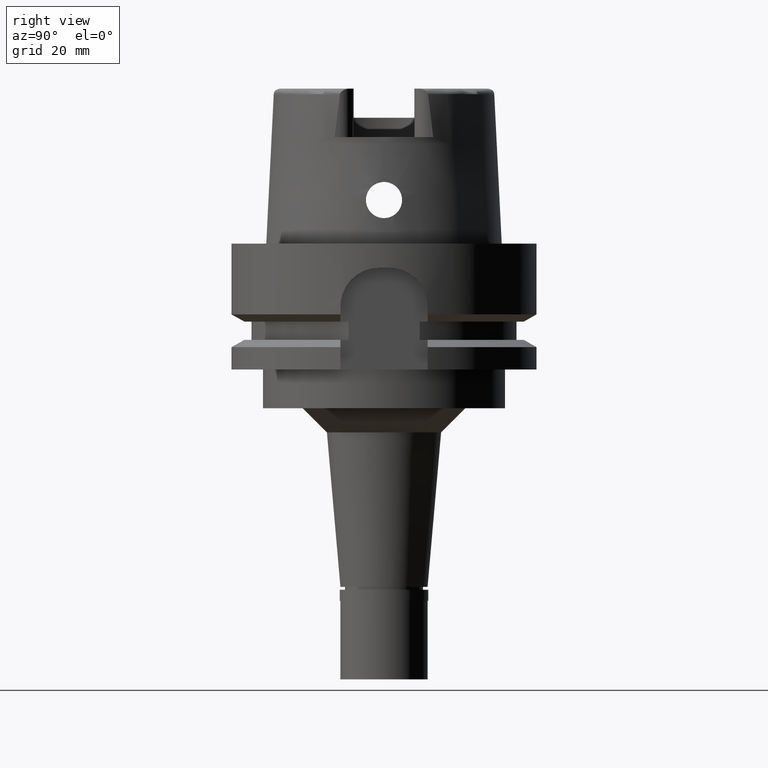
[diagram: clean part render]
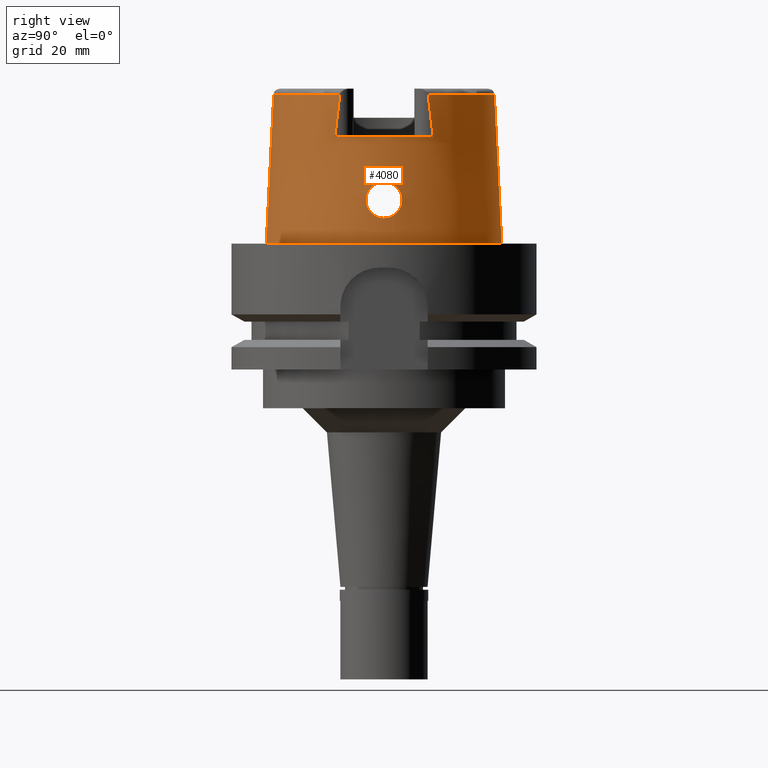
[diagram: same view with one face highlighted and labeled with its STEP entity id]
A machine part, right view. The second image highlights one B-rep face of the part: STEP entity #4080.
In plain terms, the highlighted conical surface has half-angle 2.862 deg.
Its self-contained STEP definition (entity closure, byte-faithful):
#7 = CARTESIAN_POINT ( 'NONE',  ( 23.86610099626982873, 2.553824360164203000, 6.253632452047962254 ) ) ;
#33 = AXIS2_PLACEMENT_3D ( 'NONE', #4133, #1643, #1616 ) ;
#34 = CARTESIAN_POINT ( 'NONE',  ( 23.64683082058812502, 1.470759278294880623, 12.44970541011307397 ) ) ;
#66 = CARTESIAN_POINT ( 'NONE',  ( 23.58184749024091786, 2.683601919073383080, 11.61932468916015004 ) ) ;
#118 = CARTESIAN_POINT ( 'NONE',  ( 23.64568770357830374, 1.498649928186158720, 12.43766572552738303 ) ) ;
#124 = CARTESIAN_POINT ( 'NONE',  ( 23.54199799508647928, -3.390230937593440075, 10.60443126726238638 ) ) ;
#152 = CARTESIAN_POINT ( 'NONE',  ( 23.57457979598467190, 3.748388614773936478, 8.886448749805087033 ) ) ;
#156 = CARTESIAN_POINT ( 'NONE',  ( 23.53728668007849123, -3.562516334699786569, 10.19749297402997001 ) ) ;
#185 = CARTESIAN_POINT ( 'NONE',  ( 23.58629167920701519, -2.613495886215392972, 11.68930775980577685 ) ) ;
#205 = VERTEX_POINT ( 'NONE', #3327 ) ;
#211 = CARTESIAN_POINT ( 'NONE',  ( 23.61878357754089208, -2.057968896711091844, 12.13485946368576229 ) ) ;
#238 = DIRECTION ( 'NONE',  ( 0.0000000000000000000, 0.0000000000000000000, -1.000000000000000000 ) ) ;
#240 = CARTESIAN_POINT ( 'NONE',  ( 23.61797377807429399, -2.072884344337853513, 12.12501685305687538 ) ) ;
#272 = CARTESIAN_POINT ( 'NONE',  ( 23.76221572786462133, -3.133968996046626376, 6.940675967376815692 ) ) ;
#283 = B_SPLINE_CURVE_WITH_KNOTS ( 'NONE', 3,
 ( #3354, #2905, #360, #3787, #2150, #4262, #5159, #3408, #4631, #5129, #1312, #3873, #1281, #1227, #2988, #5511, #3846, #4290, #2933, #1706, #4706, #5075, #3384, #786, #2511, #5535, #7, #4235, #384, #2098, #3814, #413, #1681, #5103, #2125, #864, #2564, #4006, #3929, #3897, #1812, #580, #1862, #3551, #3581, #3464, #5278, #3048, #4759, #5215, #152, #4402, #4426, #1369, #1758, #975, #5244, #4787, #5307, #529, #1788, #1455, #5189, #4317, #1344, #3162, #4845, #920, #2614, #949, #4349, #498, #4870, #66, #2590, #467, #3522, #2210, #1398, #1426, #3132, #2241, #2698, #3076, #3496, #2180, #1003, #118, #34, #2642, #4373, #2291 ),
 .UNSPECIFIED., .F., .F.,
 ( 4, 2, 2, 1, 1, 2, 2, 2, 2, 1, 1, 2, 2, 2, 2, 1, 1, 2, 2, 2, 2, 2, 2, 1, 2, 2, 2, 2, 1, 2, 2, 2, 2, 1, 1, 1, 2, 2, 2, 2, 2, 1, 1, 2, 2, 2, 2, 2, 2, 1, 2, 2, 4 ),
 ( 0.0000000000000000000, 0.06250000000000589806, 0.09375000000000885403, 0.1093750000000103112, 0.1171875000000110467, 0.1210937500000114075, 0.1250000000000117684, 0.1562500000000144884, 0.1718750000000158484, 0.1796875000000165146, 0.1835937500000168476, 0.1855468750000170142, 0.1875000000000171529, 0.2187500000000173750, 0.2343750000000174305, 0.2421875000000173195, 0.2460937500000172917, 0.2480468750000172085, 0.2500000000000171529, 0.2812500000000150435, 0.2968750000000140998, 0.3125000000000131006, 0.3437500000000109912, 0.3593750000000099920, 0.3671875000000093259, 0.3750000000000086597, 0.4375000000000035527, 0.4687500000000012212, 0.4843750000000000000, 0.4921874999999994449, 0.4999999999999988343, 0.5624999999999920064, 0.5937499999999885647, 0.6093749999999867883, 0.6171874999999861222, 0.6210937499999857891, 0.6230468749999856781, 0.6249999999999854561, 0.6874999999999836797, 0.7187499999999829026, 0.7343749999999822364, 0.7421874999999820144, 0.7460937499999817923, 0.7480468749999817923, 0.7499999999999816813, 0.7812499999999843459, 0.7968749999999854561, 0.8124999999999866773, 0.8437499999999888978, 0.8593749999999901190, 0.8671874999999907851, 0.8749999999999914513, 1.000000000000000000 ),
 .UNSPECIFIED. ) ;
#323 = CARTESIAN_POINT ( 'NONE',  ( 24.05252611746999847, -0.4685975498139509088, 5.249999999999998224 ) ) ;
#331 = CARTESIAN_POINT ( 'NONE',  ( 20.87001804948999961, 10.16747560217999968, 22.00000000000000000 ) ) ;
#342 = CARTESIAN_POINT ( 'NONE',  ( 0.0000000000000000000, 0.0000000000000000000, 30.85992712280000205 ) ) ;
#347 = VECTOR ( 'NONE', #1925, 1000.000000000000000 ) ;
#353 = B_SPLINE_CURVE_WITH_KNOTS ( 'NONE', 3,
 ( #480, #5202, #3446, #2498 ),
 .UNSPECIFIED., .F., .F.,
 ( 4, 4 ),
 ( 0.0000000000000000000, 1.000000000000000000 ),
 .UNSPECIFIED. ) ;
#358 = CARTESIAN_POINT ( 'NONE',  ( 23.79260149899490528, -2.982726372942812176, 6.723807401706809017 ) ) ;
#360 = CARTESIAN_POINT ( 'NONE',  ( 24.04784077505849282, 0.4713762579791234142, 5.271793800546512365 ) ) ;
#384 = CARTESIAN_POINT ( 'NONE',  ( 23.85631638838381718, 2.616290716789146042, 6.313440934651084468 ) ) ;
#386 = CARTESIAN_POINT ( 'NONE',  ( 20.87000000000000099, -10.16755860605000095, 22.00000000000000000 ) ) ;
#387 = ORIENTED_EDGE ( 'NONE', *, *, #1879, .T. ) ;
#401 = ORIENTED_EDGE ( 'NONE', *, *, #5322, .F. ) ;
#413 = CARTESIAN_POINT ( 'NONE',  ( 23.83827406826996409, 2.728798001737815504, 6.424861325945546042 ) ) ;
#467 = CARTESIAN_POINT ( 'NONE',  ( 23.58308392293322697, 2.663681672525055610, 11.63957551832344706 ) ) ;
#480 = CARTESIAN_POINT ( 'NONE',  ( 20.87000000000000099, -10.16755860605000095, 22.00000000000000000 ) ) ;
#498 = CARTESIAN_POINT ( 'NONE',  ( 23.57801659676511719, 2.745462519824017456, 11.55482802212354621 ) ) ;
#520 = B_SPLINE_CURVE_WITH_KNOTS ( 'NONE', 3,
 ( #4063, #559, #3218, #3555, #614, #5392, #2371, #1511, #4093, #4009, #3981, #1889, #1059, #672, #1947, #3638, #1541, #585, #2268, #211, #240, #4429, #1865, #3245, #1917, #4873, #2675, #185, #3610, #3586, #5283, #2323, #1006, #3135, #4489, #124, #4405, #3165, #2702, #5333, #2298, #156, #5310, #4519, #1429, #1459, #2762, #1028, #2731, #641, #5361, #4461, #4038, #1481, #3189, #4901, #4927, #2347, #1085, #2787, #2932, #2876, #3695, #731, #3785, #2904, #4603, #3757, #1680, #272, #3382, #2096, #358, #2429, #2400, #2510, #755, #1198, #5449, #5423, #812, #5480, #1602, #3328, #4175, #4119, #1565, #2484, #1976, #4629, #5531, #323, #1631 ),
 .UNSPECIFIED., .F., .F.,
 ( 4, 2, 2, 1, 1, 1, 2, 2, 2, 2, 1, 1, 2, 2, 2, 1, 1, 2, 2, 2, 2, 1, 1, 1, 2, 2, 2, 2, 1, 2, 2, 2, 2, 1, 1, 1, 2, 2, 2, 2, 1, 1, 2, 2, 2, 1, 1, 2, 2, 2, 2, 1, 1, 1, 2, 2, 4 ),
 ( 0.0000000000000000000, 0.06249999999999979183, 0.09374999999999968081, 0.1093749999999995837, 0.1171874999999995837, 0.1210937499999995837, 0.1230468749999996114, 0.1249999999999996669, 0.1562499999999992228, 0.1718749999999990008, 0.1796874999999988343, 0.1835937499999988343, 0.1855468749999988620, 0.1874999999999988898, 0.2187499999999983624, 0.2343749999999980849, 0.2421874999999978906, 0.2460937499999979183, 0.2499999999999979738, 0.3124999999999985012, 0.3437499999999987788, 0.3593749999999987232, 0.3671874999999989453, 0.3710937499999990563, 0.3730468749999991118, 0.3749999999999991118, 0.4375000000000046629, 0.4687500000000076050, 0.4843750000000090483, 0.4921875000000095479, 0.5000000000000101030, 0.5625000000000121014, 0.5937500000000131006, 0.6093750000000136557, 0.6171875000000138778, 0.6210937500000140998, 0.6230468750000140998, 0.6250000000000140998, 0.6562500000000128786, 0.6718750000000124345, 0.6796875000000121014, 0.6835937500000118794, 0.6855468750000118794, 0.6875000000000118794, 0.7187500000000113243, 0.7343750000000111022, 0.7421875000000109912, 0.7460937500000108802, 0.7500000000000106581, 0.8125000000000091038, 0.8437500000000083267, 0.8593750000000077716, 0.8671875000000075495, 0.8710937500000073275, 0.8730468750000073275, 0.8750000000000073275, 1.000000000000000000 ),
 .UNSPECIFIED. ) ;
#521 = AXIS2_PLACEMENT_3D ( 'NONE', #4051, #2749, #2779 ) ;
#529 = CARTESIAN_POINT ( 'NONE',  ( 23.53881905221228266, 3.506807874110458023, 10.32910756825747889 ) ) ;
#559 = CARTESIAN_POINT ( 'NONE',  ( 23.67751368058000239, -0.2269372618241980999, 12.75000000000000000 ) ) ;
#580 = CARTESIAN_POINT ( 'NONE',  ( 23.69855973497267243, 3.411610908037149059, 7.442951347297808162 ) ) ;
#585 = CARTESIAN_POINT ( 'NONE',  ( 23.62274807869258808, -1.983924338625913553, 12.18255698487396899 ) ) ;
#614 = CARTESIAN_POINT ( 'NONE',  ( 23.66467853638999230, -0.9475599064896280677, 12.63055377470736396 ) ) ;
#641 = CARTESIAN_POINT ( 'NONE',  ( 23.56689586154886129, -3.749960335022333169, 9.032835779095483630 ) ) ;
#651 = ORIENTED_EDGE ( 'NONE', *, *, #4897, .T. ) ;
#672 = CARTESIAN_POINT ( 'NONE',  ( 23.63992939736543875, -1.634130398431773656, 12.37746981058979401 ) ) ;
#701 = DIRECTION ( 'NONE',  ( 0.0000000000000000000, -1.000000000000000000, 0.0000000000000000000 ) ) ;
#719 = CARTESIAN_POINT ( 'NONE',  ( 0.0000000000000000000, -24.31503482328999866, 1.882938249763999678E-13 ) ) ;
#731 = CARTESIAN_POINT ( 'NONE',  ( 23.72639631422968876, -3.297434215274633207, 7.213047209902025081 ) ) ;
#755 = CARTESIAN_POINT ( 'NONE',  ( 23.84261698847215527, -2.700161048912928852, 6.397718701564205190 ) ) ;
#786 = CARTESIAN_POINT ( 'NONE',  ( 23.88975279518123784, 2.393748766182786536, 6.112744478409104509 ) ) ;
#797 = DIRECTION ( 'NONE',  ( 0.0000000000000000000, 0.04993926899645239476, -0.9987522562738468945 ) ) ;
#812 = CARTESIAN_POINT ( 'NONE',  ( 23.91110496359535276, -2.249770900569942889, 5.989653467829410438 ) ) ;
#864 = CARTESIAN_POINT ( 'NONE',  ( 23.78128112547707929, 3.041491191556952245, 6.805546591317910732 ) ) ;
#918 = B_SPLINE_CURVE_WITH_KNOTS ( 'NONE', 3,
 ( #1121, #3173, #4071, #4882 ),
 .UNSPECIFIED., .F., .F.,
 ( 4, 4 ),
 ( 0.0000000000000000000, 1.000000000000000000 ),
 .UNSPECIFIED. ) ;
#920 = CARTESIAN_POINT ( 'NONE',  ( 23.56141579289706556, 3.018731351093832505, 11.22880893402901137 ) ) ;
#949 = CARTESIAN_POINT ( 'NONE',  ( 23.57157479744221007, 2.850297542751476065, 11.43785658437544228 ) ) ;
#975 = CARTESIAN_POINT ( 'NONE',  ( 23.54089139355978944, 3.657045081287274790, 9.838751633881726022 ) ) ;
#1003 = CARTESIAN_POINT ( 'NONE',  ( 23.64327399068472602, 1.556331327749909121, 12.41193933796928661 ) ) ;
#1006 = CARTESIAN_POINT ( 'NONE',  ( 23.54998740598513152, -3.213831788688603641, 10.93618282341419246 ) ) ;
#1025 = AXIS2_PLACEMENT_3D ( 'NONE', #4601, #4957, #701 ) ;
#1028 = CARTESIAN_POINT ( 'NONE',  ( 23.56262593013055806, -3.748090223500963880, 9.123282189095380801 ) ) ;
#1059 = CARTESIAN_POINT ( 'NONE',  ( 23.64440169021373706, -1.531582783825551353, 12.42449899801493629 ) ) ;
#1085 = CARTESIAN_POINT ( 'NONE',  ( 23.68014866479311920, -3.481537480737067813, 7.606635363379910864 ) ) ;
#1086 = CARTESIAN_POINT ( 'NONE',  ( 20.86979783656000009, 9.115619587077999242, 30.82499215829999883 ) ) ;
#1089 = CARTESIAN_POINT ( 'NONE',  ( 0.0000000000000000000, -22.77198729362000051, 30.85992712280000205 ) ) ;
#1121 = CARTESIAN_POINT ( 'NONE',  ( 20.86974110885000044, -9.111383541376000039, 30.85992743120000270 ) ) ;
#1149 = ORIENTED_EDGE ( 'NONE', *, *, #1484, .F. ) ;
#1170 = FACE_BOUND ( 'NONE', #4125, .T. ) ;
#1198 = CARTESIAN_POINT ( 'NONE',  ( 23.84620483199405072, -2.678674846677985499, 6.375606982170940462 ) ) ;
#1227 = CARTESIAN_POINT ( 'NONE',  ( 23.96220732683738319, 1.798631774662497573, 5.708927875598301505 ) ) ;
#1281 = CARTESIAN_POINT ( 'NONE',  ( 23.97829014961505223, 1.636401541084440581, 5.623667973718459834 ) ) ;
#1297 = AXIS2_PLACEMENT_3D ( 'NONE', #5447, #238, #3298 ) ;
#1303 = VERTEX_POINT ( 'NONE', #331 ) ;
#1312 = CARTESIAN_POINT ( 'NONE',  ( 23.99735625169792286, 1.410263045800381976, 5.525253725811468897 ) ) ;
#1344 = CARTESIAN_POINT ( 'NONE',  ( 23.54156454941215770, 3.389891711947801589, 10.61583759861062504 ) ) ;
#1369 = CARTESIAN_POINT ( 'NONE',  ( 23.55653434083626863, 3.750009393421158244, 9.237198457394530493 ) ) ;
#1398 = CARTESIAN_POINT ( 'NONE',  ( 23.60269519947260974, 2.338469386638408309, 11.93220650268045269 ) ) ;
#1426 = CARTESIAN_POINT ( 'NONE',  ( 23.60552172650531233, 2.290113034096922906, 11.97012732684336100 ) ) ;
#1429 = CARTESIAN_POINT ( 'NONE',  ( 23.54893518584329826, -3.720975713495776827, 9.480865441389546788 ) ) ;
#1455 = CARTESIAN_POINT ( 'NONE',  ( 23.53938816561550240, 3.477957228443425475, 10.40227513446093432 ) ) ;
#1459 = CARTESIAN_POINT ( 'NONE',  ( 23.55519475543550811, -3.738320779978827169, 9.301754377375941019 ) ) ;
#1481 = CARTESIAN_POINT ( 'NONE',  ( 23.63421606384116558, -3.633977778285507387, 8.065701237330625162 ) ) ;
#1484 = EDGE_CURVE ( 'NONE', #4780, #3138, #520, .T. ) ;
#1486 = CARTESIAN_POINT ( 'NONE',  ( 20.86974092012000170, 9.111384045666000020, 30.85992712280000205 ) ) ;
#1508 = EDGE_CURVE ( 'NONE', #205, #1303, #1527, .T. ) ;
#1511 = CARTESIAN_POINT ( 'NONE',  ( 23.65232089012372541, -1.330148263772293005, 12.50643553260709595 ) ) ;
#1527 = B_SPLINE_CURVE_WITH_KNOTS ( 'NONE', 3,
 ( #5507, #4205, #2038, #4234 ),
 .UNSPECIFIED., .F., .F.,
 ( 4, 4 ),
 ( 0.0000000000000000000, 1.000000000000000000 ),
 .UNSPECIFIED. ) ;
#1541 = CARTESIAN_POINT ( 'NONE',  ( 23.62501393609635159, -1.940265213648425746, 12.20920379478999251 ) ) ;
#1558 = CARTESIAN_POINT ( 'NONE',  ( 20.86974110885000044, -9.111383541376000039, 30.85992743120000270 ) ) ;
#1565 = CARTESIAN_POINT ( 'NONE',  ( 23.99210084936986220, -1.474963489151885909, 5.552203701673819936 ) ) ;
#1573 = ORIENTED_EDGE ( 'NONE', *, *, #1508, .T. ) ;
#1589 = ORIENTED_EDGE ( 'NONE', *, *, #2502, .F. ) ;
#1602 = CARTESIAN_POINT ( 'NONE',  ( 23.95865594975947488, -1.835227266227250853, 5.727738340394175509 ) ) ;
#1616 = DIRECTION ( 'NONE',  ( 0.0000000000000000000, -1.000000000000000000, 0.0000000000000000000 ) ) ;
#1631 = CARTESIAN_POINT ( 'NONE',  ( 24.05252611746999847, 0.0000000000000000000, 5.250000000000000000 ) ) ;
#1643 = DIRECTION ( 'NONE',  ( 0.0000000000000000000, 0.0000000000000000000, 1.000000000000000000 ) ) ;
#1664 = CIRCLE ( 'NONE', #1297, 22.77198729362000407 ) ;
#1680 = CARTESIAN_POINT ( 'NONE',  ( 23.76020492347369739, -3.143580885568628247, 6.955378676769588431 ) ) ;
#1681 = CARTESIAN_POINT ( 'NONE',  ( 23.82413139239399058, 2.811969450463534415, 6.515949772150440467 ) ) ;
#1706 = CARTESIAN_POINT ( 'NONE',  ( 23.93359247609229357, 2.056675420503002005, 5.864294026444095032 ) ) ;
#1758 = CARTESIAN_POINT ( 'NONE',  ( 23.54811392395387415, 3.727414841174309323, 9.478341636720379881 ) ) ;
#1788 = CARTESIAN_POINT ( 'NONE',  ( 23.53919524995518131, 3.486765881379009446, 10.38036127741019499 ) ) ;
#1812 = CARTESIAN_POINT ( 'NONE',  ( 23.70847854141057098, 3.372183878690301562, 7.357522731814357897 ) ) ;
#1862 = CARTESIAN_POINT ( 'NONE',  ( 23.69198153002013640, 3.437251068006669907, 7.500401857094112223 ) ) ;
#1865 = CARTESIAN_POINT ( 'NONE',  ( 23.61155157825120909, -2.190148190918178805, 12.04645978993104904 ) ) ;
#1879 = EDGE_CURVE ( 'NONE', #1303, #3915, #5364, .T. ) ;
#1889 = CARTESIAN_POINT ( 'NONE',  ( 23.64841211551645372, -1.431313844244924027, 12.46610465183052874 ) ) ;
#1917 = CARTESIAN_POINT ( 'NONE',  ( 23.59752478912244555, -2.431654359917491348, 11.85540691694829007 ) ) ;
#1925 = DIRECTION ( 'NONE',  ( 0.0000000000000000000, -0.04993926899645239476, -0.9987522562738468945 ) ) ;
#1947 = CARTESIAN_POINT ( 'NONE',  ( 23.63217429571847461, -1.797782848949725398, 12.29154567766471828 ) ) ;
#1976 = CARTESIAN_POINT ( 'NONE',  ( 23.99462923735713460, -1.444059471803009309, 5.539185487589286971 ) ) ;
#2018 = EDGE_CURVE ( 'NONE', #4181, #2488, #5465, .T. ) ;
#2038 = CARTESIAN_POINT ( 'NONE',  ( 20.87003658568521303, 9.826152025516758926, 24.98976325587998559 ) ) ;
#2052 = CARTESIAN_POINT ( 'NONE',  ( 0.0000000000000000000, 22.77198729362000051, 30.85992712280000205 ) ) ;
#2076 = EDGE_LOOP ( 'NONE', ( #3893, #1589, #2314, #3681, #651, #4854, #5456, #401, #1573, #387 ) ) ;
#2096 = CARTESIAN_POINT ( 'NONE',  ( 23.77839576309242631, -3.056008757607928228, 6.823185852251183015 ) ) ;
#2098 = CARTESIAN_POINT ( 'NONE',  ( 23.85432518503210630, 2.628812784128297331, 6.325692599499984858 ) ) ;
#2125 = CARTESIAN_POINT ( 'NONE',  ( 23.79562250219492725, 2.967775848069229561, 6.706836040137573285 ) ) ;
#2150 = CARTESIAN_POINT ( 'NONE',  ( 24.02792806980962581, 0.9494002330134392320, 5.370044802437950793 ) ) ;
#2180 = CARTESIAN_POINT ( 'NONE',  ( 23.63961013986031645, 1.642012165882747565, 12.37241466383991373 ) ) ;
#2210 = CARTESIAN_POINT ( 'NONE',  ( 23.59429629025760278, 2.480656481163456384, 11.81494930840466928 ) ) ;
#2241 = CARTESIAN_POINT ( 'NONE',  ( 23.61419839561850864, 2.139864287274875654, 12.08010162468809945 ) ) ;
#2268 = CARTESIAN_POINT ( 'NONE',  ( 23.61999009969097330, -2.035645914424377700, 12.14947547426653252 ) ) ;
#2285 = AXIS2_PLACEMENT_3D ( 'NONE', #342, #2418, #5466 ) ;
#2290 = CIRCLE ( 'NONE', #2285, 22.77198729362000051 ) ;
#2291 = CARTESIAN_POINT ( 'NONE',  ( 23.67751368057999883, 0.0000000000000000000, 12.75000000000000000 ) ) ;
#2298 = CARTESIAN_POINT ( 'NONE',  ( 23.53972633428752559, -3.463832341874075293, 10.43681141511330956 ) ) ;
#2314 = ORIENTED_EDGE ( 'NONE', *, *, #4139, .T. ) ;
#2323 = CARTESIAN_POINT ( 'NONE',  ( 23.56094474692503127, -3.013923653200347275, 11.24473583732199700 ) ) ;
#2347 = CARTESIAN_POINT ( 'NONE',  ( 23.67764012416500563, -3.490709029891247539, 7.629625542802776828 ) ) ;
#2367 = CONICAL_SURFACE ( 'NONE', #1025, 23.54351105844999736, 0.04996004983832824653 ) ;
#2371 = CARTESIAN_POINT ( 'NONE',  ( 23.65619817326444974, -1.222953347645819422, 12.54602582008851641 ) ) ;
#2400 = CARTESIAN_POINT ( 'NONE',  ( 23.82470342304303657, -2.805461651931806966, 6.510313122143885245 ) ) ;
#2403 = CARTESIAN_POINT ( 'NONE',  ( 20.87000233117000292, 9.149994763924999219, 30.54552228658999979 ) ) ;
#2418 = DIRECTION ( 'NONE',  ( 0.0000000000000000000, 0.0000000000000000000, -1.000000000000000000 ) ) ;
#2429 = CARTESIAN_POINT ( 'NONE',  ( 23.81398954185866756, -2.865728235233883758, 6.580515752918278949 ) ) ;
#2463 = CIRCLE ( 'NONE', #33, 24.31503482328999866 ) ;
#2484 = CARTESIAN_POINT ( 'NONE',  ( 23.99362284327500561, -1.456410998629531717, 5.544365202963786210 ) ) ;
#2488 = VERTEX_POINT ( 'NONE', #5317 ) ;
#2498 = CARTESIAN_POINT ( 'NONE',  ( 20.86999179061000120, -9.150018439614999721, 30.54599490405999873 ) ) ;
#2502 = EDGE_CURVE ( 'NONE', #4524, #3060, #918, .T. ) ;
#2510 = CARTESIAN_POINT ( 'NONE',  ( 23.83723770565837441, -2.732185833349593196, 6.431085014200220940 ) ) ;
#2511 = CARTESIAN_POINT ( 'NONE',  ( 23.88276114182464127, 2.442550838843437155, 6.153808027313274032 ) ) ;
#2564 = CARTESIAN_POINT ( 'NONE',  ( 23.77392409831421460, 3.077901552149866049, 6.856953425320914342 ) ) ;
#2590 = CARTESIAN_POINT ( 'NONE',  ( 23.58263000816597099, 2.670991511506753735, 11.63218263666431618 ) ) ;
#2614 = CARTESIAN_POINT ( 'NONE',  ( 23.56890854904223431, 2.894110309980802764, 11.38559899653816387 ) ) ;
#2631 = CARTESIAN_POINT ( 'NONE',  ( 23.67751368057999883, 0.0000000000000000000, 12.75000000000000000 ) ) ;
#2642 = CARTESIAN_POINT ( 'NONE',  ( 23.66769516538260731, 0.9501039779684758990, 12.66626129347694274 ) ) ;
#2675 = CARTESIAN_POINT ( 'NONE',  ( 23.58839877890404324, -2.580310257006306784, 11.72142571181462500 ) ) ;
#2698 = CARTESIAN_POINT ( 'NONE',  ( 23.62265141585296746, 1.991568263108845827, 12.17967554930064900 ) ) ;
#2702 = CARTESIAN_POINT ( 'NONE',  ( 23.53991781665941119, -3.456496827750465961, 10.45436410508649416 ) ) ;
#2731 = CARTESIAN_POINT ( 'NONE',  ( 23.56538194195815095, -3.749570833537779091, 9.064010826697204593 ) ) ;
#2749 = DIRECTION ( 'NONE',  ( 0.0000000000000000000, 0.0000000000000000000, -1.000000000000000000 ) ) ;
#2762 = CARTESIAN_POINT ( 'NONE',  ( 23.55865928454669955, -3.744810778333773182, 9.212336081507420005 ) ) ;
#2779 = DIRECTION ( 'NONE',  ( 0.8989877876694422065, 0.4379736951247206744, 0.0000000000000000000 ) ) ;
#2787 = CARTESIAN_POINT ( 'NONE',  ( 23.68182876623762567, -3.475364911677824686, 7.591310193463790768 ) ) ;
#2851 = CARTESIAN_POINT ( 'NONE',  ( 20.86989360827000084, 9.124124434996000232, 30.75511465902000197 ) ) ;
#2876 = CARTESIAN_POINT ( 'NONE',  ( 23.69416603426912715, -3.429618717865709598, 7.479793454422662968 ) ) ;
#2904 = CARTESIAN_POINT ( 'NONE',  ( 23.74461760133738863, -3.216369799747139435, 7.071643484561453086 ) ) ;
#2905 = CARTESIAN_POINT ( 'NONE',  ( 24.05252611746999492, 0.2330771861183949800, 5.250000000000001776 ) ) ;
#2932 = CARTESIAN_POINT ( 'NONE',  ( 23.68285513203028003, -3.471572807043562747, 7.581999830151901598 ) ) ;
#2933 = CARTESIAN_POINT ( 'NONE',  ( 23.93520082888522893, 2.043096808902235662, 5.855429891487728078 ) ) ;
#2988 = CARTESIAN_POINT ( 'NONE',  ( 23.95656039384594749, 1.852905829038556274, 5.739137860364320609 ) ) ;
#3048 = CARTESIAN_POINT ( 'NONE',  ( 23.59642337939682832, 3.723193938022077543, 8.537145364027772132 ) ) ;
#3060 = VERTEX_POINT ( 'NONE', #4450 ) ;
#3076 = CARTESIAN_POINT ( 'NONE',  ( 23.62805592809426969, 1.887816621426480879, 12.24250377702025006 ) ) ;
#3132 = CARTESIAN_POINT ( 'NONE',  ( 23.61122856182610619, 2.191595777424108160, 12.04354760024861903 ) ) ;
#3135 = CARTESIAN_POINT ( 'NONE',  ( 23.54699556186239917, -3.273327982614070208, 10.83330770379535046 ) ) ;
#3138 = VERTEX_POINT ( 'NONE', #3155 ) ;
#3155 = CARTESIAN_POINT ( 'NONE',  ( 24.05252611746999847, 0.0000000000000000000, 5.250000000000000000 ) ) ;
#3162 = CARTESIAN_POINT ( 'NONE',  ( 23.54615767435463880, 3.290419275261979859, 10.81533316881154505 ) ) ;
#3165 = CARTESIAN_POINT ( 'NONE',  ( 23.54013042264443456, -3.448634373822565991, 10.47300382813713426 ) ) ;
#3173 = CARTESIAN_POINT ( 'NONE',  ( 20.86991377786844382, -9.124261068912071337, 30.75528325548666331 ) ) ;
#3189 = CARTESIAN_POINT ( 'NONE',  ( 23.65159051189734285, -3.580177459136362206, 7.882466318699295371 ) ) ;
#3192 = CARTESIAN_POINT ( 'NONE',  ( 20.87000233117000292, 9.145647684069000860, 30.58043093308000238 ) ) ;
#3218 = CARTESIAN_POINT ( 'NONE',  ( 23.67506889121047209, -0.4634815564845479186, 12.72935847292963629 ) ) ;
#3224 = CARTESIAN_POINT ( 'NONE',  ( 0.0000000000000000000, -22.77198729362000051, 30.85992712280000205 ) ) ;
#3245 = CARTESIAN_POINT ( 'NONE',  ( 23.60594329722899687, -2.289066581451940419, 11.97285057403286679 ) ) ;
#3250 = LINE ( 'NONE', #1089, #347 ) ;
#3298 = DIRECTION ( 'NONE',  ( 0.9164655183265837390, -0.4001136759951928745, 0.0000000000000000000 ) ) ;
#3327 = CARTESIAN_POINT ( 'NONE',  ( 20.87000233117000292, 9.149994763924999219, 30.54552228658999979 ) ) ;
#3328 = CARTESIAN_POINT ( 'NONE',  ( 23.97370934641362084, -1.682079325060492403, 5.647922582022963489 ) ) ;
#3354 = CARTESIAN_POINT ( 'NONE',  ( 24.05252611746999847, 0.0000000000000000000, 5.250000000000000000 ) ) ;
#3360 = B_SPLINE_CURVE_WITH_KNOTS ( 'NONE', 3,
 ( #2403, #3192, #4095, #2851, #1086, #1486 ),
 .UNSPECIFIED., .F., .F.,
 ( 4, 1, 1, 4 ),
 ( 0.0000000000000000000, 0.3333333333333000081, 0.6666666666667000474, 1.000000000000000000 ),
 .UNSPECIFIED. ) ;
#3382 = CARTESIAN_POINT ( 'NONE',  ( 23.76335843799484948, -3.128481740037758474, 6.932353653591976084 ) ) ;
#3384 = CARTESIAN_POINT ( 'NONE',  ( 23.90966612610531072, 2.249892644458846735, 5.997402208312804461 ) ) ;
#3408 = CARTESIAN_POINT ( 'NONE',  ( 24.00424512808899991, 1.320547455719684793, 5.489957723265351142 ) ) ;
#3446 = CARTESIAN_POINT ( 'NONE',  ( 20.86997558656052476, -9.487356811412270829, 27.83696496950079791 ) ) ;
#3464 = CARTESIAN_POINT ( 'NONE',  ( 23.63437902705015148, 3.637157487368931630, 8.054285572799065207 ) ) ;
#3496 = CARTESIAN_POINT ( 'NONE',  ( 23.63581644458371755, 1.725122880142947679, 12.33020219107466176 ) ) ;
#3522 = CARTESIAN_POINT ( 'NONE',  ( 23.58880457995841340, 2.571602777112532490, 11.73211554353163777 ) ) ;
#3551 = CARTESIAN_POINT ( 'NONE',  ( 23.68889937195573125, 3.449039576172379107, 7.527672645744617697 ) ) ;
#3555 = CARTESIAN_POINT ( 'NONE',  ( 23.66773452310190251, -0.8256450679316175156, 12.66004339660113054 ) ) ;
#3581 = CARTESIAN_POINT ( 'NONE',  ( 23.65789844104446971, 3.564907296019145466, 7.805959179643570778 ) ) ;
#3586 = CARTESIAN_POINT ( 'NONE',  ( 23.58426862643280941, -2.645112811163156330, 11.65822788186617665 ) ) ;
#3610 = CARTESIAN_POINT ( 'NONE',  ( 23.58488681927206088, -2.635486960762567943, 11.66776038164352514 ) ) ;
#3638 = CARTESIAN_POINT ( 'NONE',  ( 23.62941481810707955, -1.853961940192638380, 12.26033702360228261 ) ) ;
#3658 = VERTEX_POINT ( 'NONE', #3224 ) ;
#3681 = ORIENTED_EDGE ( 'NONE', *, *, #3707, .T. ) ;
#3695 = CARTESIAN_POINT ( 'NONE',  ( 23.70621568740239837, -3.382564234139204373, 7.376469921949904140 ) ) ;
#3707 = EDGE_CURVE ( 'NONE', #3658, #4883, #3250, .T. ) ;
#3757 = CARTESIAN_POINT ( 'NONE',  ( 23.75720517116173980, -3.157860767829802739, 6.977390894606571692 ) ) ;
#3785 = CARTESIAN_POINT ( 'NONE',  ( 23.73347421436003302, -3.266630154353623805, 7.157175648059038942 ) ) ;
#3787 = CARTESIAN_POINT ( 'NONE',  ( 24.03378474782400076, 0.8297864663593866874, 5.340934725807114702 ) ) ;
#3814 = CARTESIAN_POINT ( 'NONE',  ( 23.85319510156594092, 2.635881025144990897, 6.332662280612280092 ) ) ;
#3824 = VERTEX_POINT ( 'NONE', #4320 ) ;
#3846 = CARTESIAN_POINT ( 'NONE',  ( 23.94310406544311221, 1.975172730042196623, 5.812054761604393605 ) ) ;
#3873 = CARTESIAN_POINT ( 'NONE',  ( 23.98786806320463683, 1.529050181572424005, 5.573991921227072766 ) ) ;
#3893 = ORIENTED_EDGE ( 'NONE', *, *, #4937, .T. ) ;
#3897 = CARTESIAN_POINT ( 'NONE',  ( 23.71855184487575130, 3.329952780369188847, 7.274390351208498195 ) ) ;
#3915 = VERTEX_POINT ( 'NONE', #386 ) ;
#3929 = CARTESIAN_POINT ( 'NONE',  ( 23.73890444784245446, 3.242009477088726666, 7.111314936674147269 ) ) ;
#3981 = CARTESIAN_POINT ( 'NONE',  ( 23.64878501799845623, -1.421928845402213870, 12.46996923386418210 ) ) ;
#4006 = CARTESIAN_POINT ( 'NONE',  ( 23.75274751120207384, 3.178739631762727225, 7.006856578832771021 ) ) ;
#4009 = CARTESIAN_POINT ( 'NONE',  ( 23.64938666538236589, -1.406640230093717525, 12.47619495834637426 ) ) ;
#4038 = CARTESIAN_POINT ( 'NONE',  ( 23.62362394976919688, -3.662888062288447877, 8.187185849151221717 ) ) ;
#4051 = CARTESIAN_POINT ( 'NONE',  ( 0.0000000000000000000, 0.0000000000000000000, 22.00000000000000000 ) ) ;
#4063 = CARTESIAN_POINT ( 'NONE',  ( 23.67751368057999883, 0.0000000000000000000, 12.75000000000000000 ) ) ;
#4071 = CARTESIAN_POINT ( 'NONE',  ( 20.87000008239884252, -9.137139754562893401, 30.65063907977333457 ) ) ;
#4080 = ADVANCED_FACE ( 'NONE', ( #5390, #1170 ), #2367, .T. ) ;
#4093 = CARTESIAN_POINT ( 'NONE',  ( 23.65028197398938659, -1.383702099122871454, 12.48544739742535725 ) ) ;
#4095 = CARTESIAN_POINT ( 'NONE',  ( 20.86997922676000172, 9.137000529245002056, 30.65041110573000083 ) ) ;
#4119 = CARTESIAN_POINT ( 'NONE',  ( 23.98846271078420500, -1.518424972417324437, 5.570980403077474996 ) ) ;
#4125 = EDGE_LOOP ( 'NONE', ( #5399, #1149 ) ) ;
#4133 = CARTESIAN_POINT ( 'NONE',  ( 0.0000000000000000000, 0.0000000000000000000, 1.136868377215999875E-13 ) ) ;
#4139 = EDGE_CURVE ( 'NONE', #4524, #3658, #1664, .T. ) ;
#4175 = CARTESIAN_POINT ( 'NONE',  ( 23.98083915571819347, -1.606003954896193520, 5.610516281953393580 ) ) ;
#4181 = VERTEX_POINT ( 'NONE', #4203 ) ;
#4203 = CARTESIAN_POINT ( 'NONE',  ( 0.0000000000000000000, 22.77198729362000051, 30.85992712280000205 ) ) ;
#4205 = CARTESIAN_POINT ( 'NONE',  ( 20.87000693992522926, 9.487123607258801883, 27.83827043657305111 ) ) ;
#4234 = CARTESIAN_POINT ( 'NONE',  ( 20.87001804948999961, 10.16747560217999968, 22.00000000000000000 ) ) ;
#4235 = CARTESIAN_POINT ( 'NONE',  ( 23.85928660545596003, 2.597520175351366589, 6.295204538298431629 ) ) ;
#4262 = CARTESIAN_POINT ( 'NONE',  ( 24.01738604938374522, 1.128035036008276704, 5.423144419713561426 ) ) ;
#4290 = CARTESIAN_POINT ( 'NONE',  ( 23.93759995219654613, 2.022725262739354157, 5.842225526485255394 ) ) ;
#4317 = CARTESIAN_POINT ( 'NONE',  ( 23.53961082911657599, 3.468421493443666126, 10.42568973063583471 ) ) ;
#4320 = CARTESIAN_POINT ( 'NONE',  ( 20.86974092012000170, 9.111384045666000020, 30.85992712280000205 ) ) ;
#4349 = CARTESIAN_POINT ( 'NONE',  ( 23.57582716456958849, 2.781003194231097986, 11.51589575215784222 ) ) ;
#4373 = CARTESIAN_POINT ( 'NONE',  ( 23.67751368058000239, 0.4546816382623369845, 12.75000000000000178 ) ) ;
#4402 = CARTESIAN_POINT ( 'NONE',  ( 23.57147535869966859, 3.749680892894117434, 8.943393505209467520 ) ) ;
#4405 = CARTESIAN_POINT ( 'NONE',  ( 23.54068069335428248, -3.429812187616572139, 10.51663668265443974 ) ) ;
#4426 = CARTESIAN_POINT ( 'NONE',  ( 23.57006338102604914, 3.749998822516332986, 8.970183176149747695 ) ) ;
#4429 = CARTESIAN_POINT ( 'NONE',  ( 23.61750606551456499, -2.081455624385040171, 12.11931109818658214 ) ) ;
#4450 = CARTESIAN_POINT ( 'NONE',  ( 20.86999179061000120, -9.150018439614999721, 30.54599490405999873 ) ) ;
#4461 = CARTESIAN_POINT ( 'NONE',  ( 23.59482016144982808, -3.730576183391591361, 8.547269900920662522 ) ) ;
#4489 = CARTESIAN_POINT ( 'NONE',  ( 23.54349869996415023, -3.352877635054446692, 10.68047905937313935 ) ) ;
#4519 = CARTESIAN_POINT ( 'NONE',  ( 23.54565479095543168, -3.703588598441787560, 9.600641507854710710 ) ) ;
#4524 = VERTEX_POINT ( 'NONE', #1558 ) ;
#4601 = CARTESIAN_POINT ( 'NONE',  ( 0.0000000000000000000, 0.0000000000000000000, 15.42996356139999925 ) ) ;
#4603 = CARTESIAN_POINT ( 'NONE',  ( 23.75032092902153380, -3.190225999002244794, 7.028447197983707539 ) ) ;
#4629 = CARTESIAN_POINT ( 'NONE',  ( 23.99503049023216050, -1.439109231966191560, 5.537121384474077423 ) ) ;
#4631 = CARTESIAN_POINT ( 'NONE',  ( 24.00089584034953560, 1.364708548276447608, 5.507104273208000222 ) ) ;
#4706 = CARTESIAN_POINT ( 'NONE',  ( 23.93262350135218952, 2.064801694071092264, 5.869642726012325618 ) ) ;
#4728 = VECTOR ( 'NONE', #797, 1000.000000000000000 ) ;
#4759 = CARTESIAN_POINT ( 'NONE',  ( 23.58483927245797673, 3.739488385293518569, 8.713288481577381006 ) ) ;
#4780 = VERTEX_POINT ( 'NONE', #2631 ) ;
#4787 = CARTESIAN_POINT ( 'NONE',  ( 23.53847801485101954, 3.573951950814937106, 10.13720195077746489 ) ) ;
#4845 = CARTESIAN_POINT ( 'NONE',  ( 23.55709527420666660, 3.092714410333459174, 11.12428010307409743 ) ) ;
#4854 = ORIENTED_EDGE ( 'NONE', *, *, #2018, .F. ) ;
#4870 = CARTESIAN_POINT ( 'NONE',  ( 23.58068161943231900, 2.702401868969935173, 11.60001673252916099 ) ) ;
#4873 = CARTESIAN_POINT ( 'NONE',  ( 23.59331401342585366, -2.501501610734509828, 11.79492874593010754 ) ) ;
#4882 = CARTESIAN_POINT ( 'NONE',  ( 20.86999179061000120, -9.150018439614999721, 30.54599490405999873 ) ) ;
#4883 = VERTEX_POINT ( 'NONE', #719 ) ;
#4891 = EDGE_CURVE ( 'NONE', #4181, #3824, #2290, .T. ) ;
#4897 = EDGE_CURVE ( 'NONE', #4883, #2488, #2463, .T. ) ;
#4901 = CARTESIAN_POINT ( 'NONE',  ( 23.66064930516247244, -3.550670030984948600, 7.790600221832285399 ) ) ;
#4927 = CARTESIAN_POINT ( 'NONE',  ( 23.67186814347002155, -3.511500690500572563, 7.683281200908120390 ) ) ;
#4937 = EDGE_CURVE ( 'NONE', #3915, #3060, #353, .T. ) ;
#4957 = DIRECTION ( 'NONE',  ( 0.0000000000000000000, 0.0000000000000000000, -1.000000000000000000 ) ) ;
#5075 = CARTESIAN_POINT ( 'NONE',  ( 23.92152617452709862, 2.157424480801231503, 5.930969132916027675 ) ) ;
#5103 = CARTESIAN_POINT ( 'NONE',  ( 23.80276835294861471, 2.929701840532716428, 6.658389110722253257 ) ) ;
#5129 = CARTESIAN_POINT ( 'NONE',  ( 23.99862637761896167, 1.394113010137505659, 5.518736020502617023 ) ) ;
#5159 = CARTESIAN_POINT ( 'NONE',  ( 24.01167578831972094, 1.217154547278934240, 5.452051314338831389 ) ) ;
#5189 = CARTESIAN_POINT ( 'NONE',  ( 23.53952381784599623, 3.472036064664361987, 10.41687247177694609 ) ) ;
#5202 = CARTESIAN_POINT ( 'NONE',  ( 20.86999201472913512, -9.826413489730867923, 24.98830091298254530 ) ) ;
#5215 = CARTESIAN_POINT ( 'NONE',  ( 23.57942568483584012, 3.745465792282217432, 8.800552556951615202 ) ) ;
#5244 = CARTESIAN_POINT ( 'NONE',  ( 23.53938523258333504, 3.627522098094960956, 9.958658814269499615 ) ) ;
#5278 = CARTESIAN_POINT ( 'NONE',  ( 23.60515535961553724, 3.706542119269374602, 8.417554200361047734 ) ) ;
#5283 = CARTESIAN_POINT ( 'NONE',  ( 23.57089205231390139, -2.851924153554325603, 11.45053587694345154 ) ) ;
#5307 = CARTESIAN_POINT ( 'NONE',  ( 23.53836241191795864, 3.544847000214589983, 10.22614316453956995 ) ) ;
#5310 = CARTESIAN_POINT ( 'NONE',  ( 23.53849156081263416, -3.633405206259093134, 9.959281771427601626 ) ) ;
#5317 = CARTESIAN_POINT ( 'NONE',  ( 0.0000000000000000000, 24.31503482328999866, 1.136868377215999875E-13 ) ) ;
#5322 = EDGE_CURVE ( 'NONE', #205, #3824, #3360, .T. ) ;
#5333 = CARTESIAN_POINT ( 'NONE',  ( 23.53978124029588059, -3.461693458052835126, 10.44195134206646181 ) ) ;
#5361 = CARTESIAN_POINT ( 'NONE',  ( 23.57958104109890840, -3.750288569556508023, 8.781366486217544676 ) ) ;
#5364 = CIRCLE ( 'NONE', #521, 23.21499834174999322 ) ;
#5390 = FACE_OUTER_BOUND ( 'NONE', #2076, .T. ) ;
#5392 = CARTESIAN_POINT ( 'NONE',  ( 23.65917776030856245, -1.131053932931495254, 12.57593199357277314 ) ) ;
#5399 = ORIENTED_EDGE ( 'NONE', *, *, #5502, .F. ) ;
#5423 = CARTESIAN_POINT ( 'NONE',  ( 23.88256680224344208, -2.458435621999683907, 6.154344224659983098 ) ) ;
#5447 = CARTESIAN_POINT ( 'NONE',  ( 0.0000000000000000000, 0.0000000000000000000, 30.85992712280000205 ) ) ;
#5449 = CARTESIAN_POINT ( 'NONE',  ( 23.84774693021885028, -2.669394274900619202, 6.366154250218804656 ) ) ;
#5456 = ORIENTED_EDGE ( 'NONE', *, *, #4891, .T. ) ;
#5465 = LINE ( 'NONE', #2052, #4728 ) ;
#5466 = DIRECTION ( 'NONE',  ( 0.0000000000000000000, 1.000000000000000000, 0.0000000000000000000 ) ) ;
#5480 = CARTESIAN_POINT ( 'NONE',  ( 23.94756198126342639, -1.938669284807170268, 5.787625451267249588 ) ) ;
#5502 = EDGE_CURVE ( 'NONE', #3138, #4780, #283, .T. ) ;
#5507 = CARTESIAN_POINT ( 'NONE',  ( 20.87000233117000292, 9.149994763924999219, 30.54552228658999979 ) ) ;
#5511 = CARTESIAN_POINT ( 'NONE',  ( 23.94766100626046068, 1.934402964974784700, 5.787278311875527770 ) ) ;
#5531 = CARTESIAN_POINT ( 'NONE',  ( 24.03355848786576132, -0.9596760778939262826, 5.339073149617481917 ) ) ;
#5535 = CARTESIAN_POINT ( 'NONE',  ( 23.87174284721692175, 2.516593840883600386, 6.219649972313377795 ) ) ;